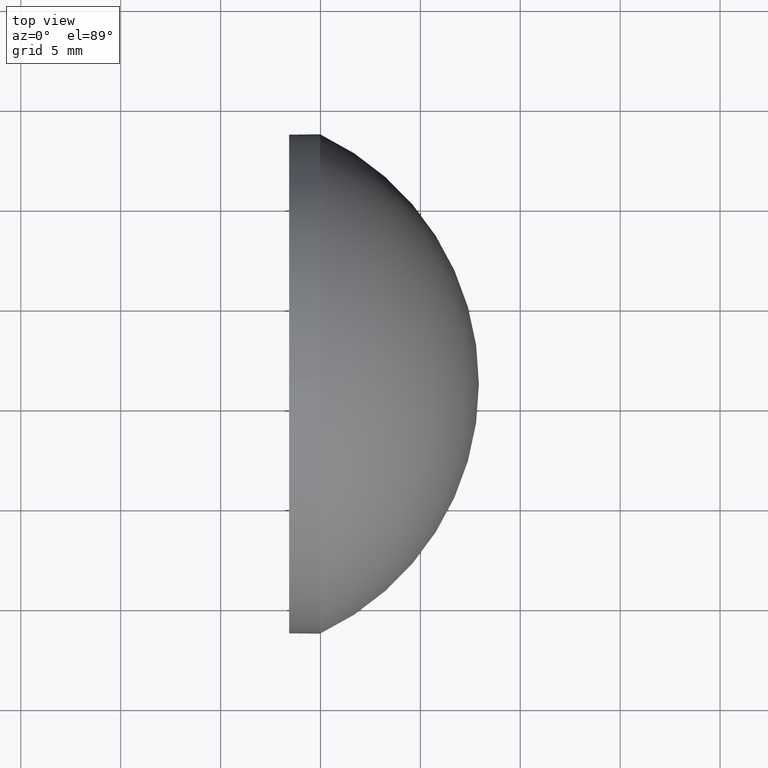
[diagram: clean part render]
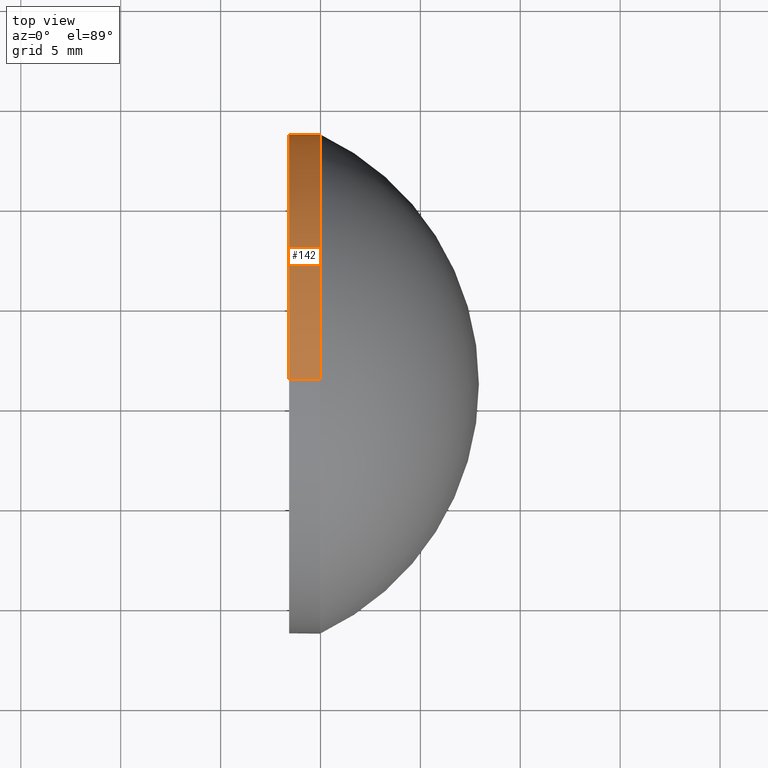
[diagram: same view with one face highlighted and labeled with its STEP entity id]
A machine part, top view. The second image highlights one B-rep face of the part: STEP entity #142.
In plain terms, the highlighted cylindrical surface (partial cylindrical patch) has radius 12.5 mm, axis along (-1, -0, -0).
Its self-contained STEP definition (entity closure, byte-faithful):
#4 = DIRECTION ( 'NONE',  ( 0.0000000000000000000, 0.0000000000000000000, 1.000000000000000000 ) ) ;
#10 = VERTEX_POINT ( 'NONE', #122 ) ;
#11 = ORIENTED_EDGE ( 'NONE', *, *, #55, .F. ) ;
#14 = EDGE_CURVE ( 'NONE', #10, #175, #37, .T. ) ;
#15 = AXIS2_PLACEMENT_3D ( 'NONE', #68, #124, #31 ) ;
#21 = CARTESIAN_POINT ( 'NONE',  ( 444.9787641155197100, -33.87662092568371000, -12.50000000000000400 ) ) ;
#31 = DIRECTION ( 'NONE',  ( 0.0000000000000000000, 0.0000000000000000000, 1.000000000000000000 ) ) ;
#32 = CIRCLE ( 'NONE', #15, 12.50000000000000400 ) ;
#37 = CIRCLE ( 'NONE', #47, 12.50000000000000400 ) ;
#40 = LINE ( 'NONE', #65, #100 ) ;
#44 = VECTOR ( 'NONE', #136, 1000.000000000000000 ) ;
#46 = DIRECTION ( 'NONE',  ( -1.000000000000000000, -0.0000000000000000000, -0.0000000000000000000 ) ) ;
#47 = AXIS2_PLACEMENT_3D ( 'NONE', #133, #46, #147 ) ;
#48 = VERTEX_POINT ( 'NONE', #21 ) ;
#50 = DIRECTION ( 'NONE',  ( -1.000000000000000000, -0.0000000000000000000, -0.0000000000000000000 ) ) ;
#52 = CARTESIAN_POINT ( 'NONE',  ( 441.3996565370827600, -33.87662092568371000, 12.50000000000000400 ) ) ;
#55 = EDGE_CURVE ( 'NONE', #129, #10, #144, .T. ) ;
#60 = EDGE_CURVE ( 'NONE', #129, #85, #156, .T. ) ;
#63 = ORIENTED_EDGE ( 'NONE', *, *, #99, .T. ) ;
#65 = CARTESIAN_POINT ( 'NONE',  ( 441.3996565370827600, -33.87662092568371000, -12.50000000000000400 ) ) ;
#68 = CARTESIAN_POINT ( 'NONE',  ( 444.9787641155197100, -33.87662092568371000, 0.0000000000000000000 ) ) ;
#79 = AXIS2_PLACEMENT_3D ( 'NONE', #162, #152, #4 ) ;
#85 = VERTEX_POINT ( 'NONE', #106 ) ;
#87 = CARTESIAN_POINT ( 'NONE',  ( 443.4287641155197000, -33.87662092568371000, -12.50000000000000400 ) ) ;
#99 = EDGE_CURVE ( 'NONE', #48, #175, #40, .T. ) ;
#100 = VECTOR ( 'NONE', #50, 1000.000000000000000 ) ;
#102 = FACE_OUTER_BOUND ( 'NONE', #146, .T. ) ;
#106 = CARTESIAN_POINT ( 'NONE',  ( 444.9787641155197100, -21.37662092568372100, 0.0000000000000000000 ) ) ;
#107 = ORIENTED_EDGE ( 'NONE', *, *, #14, .F. ) ;
#109 = CARTESIAN_POINT ( 'NONE',  ( 444.9787641155197100, -33.87662092568371000, 12.50000000000000400 ) ) ;
#122 = CARTESIAN_POINT ( 'NONE',  ( 443.4287641155197000, -33.87662092568371000, 12.50000000000000400 ) ) ;
#124 = DIRECTION ( 'NONE',  ( -1.000000000000000000, -0.0000000000000000000, -0.0000000000000000000 ) ) ;
#125 = DIRECTION ( 'NONE',  ( 0.0000000000000000000, 0.0000000000000000000, 1.000000000000000000 ) ) ;
#128 = EDGE_CURVE ( 'NONE', #85, #48, #32, .T. ) ;
#129 = VERTEX_POINT ( 'NONE', #109 ) ;
#133 = CARTESIAN_POINT ( 'NONE',  ( 443.4287641155197000, -33.87662092568371000, 0.0000000000000000000 ) ) ;
#136 = DIRECTION ( 'NONE',  ( -1.000000000000000000, -0.0000000000000000000, -0.0000000000000000000 ) ) ;
#137 = DIRECTION ( 'NONE',  ( -1.000000000000000000, -0.0000000000000000000, -0.0000000000000000000 ) ) ;
#142 = ADVANCED_FACE ( 'NONE', ( #102 ), #184, .T. ) ;
#144 = LINE ( 'NONE', #52, #44 ) ;
#146 = EDGE_LOOP ( 'NONE', ( #186, #63, #107, #11, #151 ) ) ;
#147 = DIRECTION ( 'NONE',  ( 0.0000000000000000000, 0.0000000000000000000, 1.000000000000000000 ) ) ;
#151 = ORIENTED_EDGE ( 'NONE', *, *, #60, .T. ) ;
#152 = DIRECTION ( 'NONE',  ( -1.000000000000000000, -0.0000000000000000000, -0.0000000000000000000 ) ) ;
#156 = CIRCLE ( 'NONE', #168, 12.50000000000000400 ) ;
#162 = CARTESIAN_POINT ( 'NONE',  ( 441.3996565370827600, -33.87662092568371000, 0.0000000000000000000 ) ) ;
#165 = CARTESIAN_POINT ( 'NONE',  ( 444.9787641155197100, -33.87662092568371000, 0.0000000000000000000 ) ) ;
#168 = AXIS2_PLACEMENT_3D ( 'NONE', #165, #137, #125 ) ;
#175 = VERTEX_POINT ( 'NONE', #87 ) ;
#184 = CYLINDRICAL_SURFACE ( 'NONE', #79, 12.50000000000000400 ) ;
#186 = ORIENTED_EDGE ( 'NONE', *, *, #128, .T. ) ;